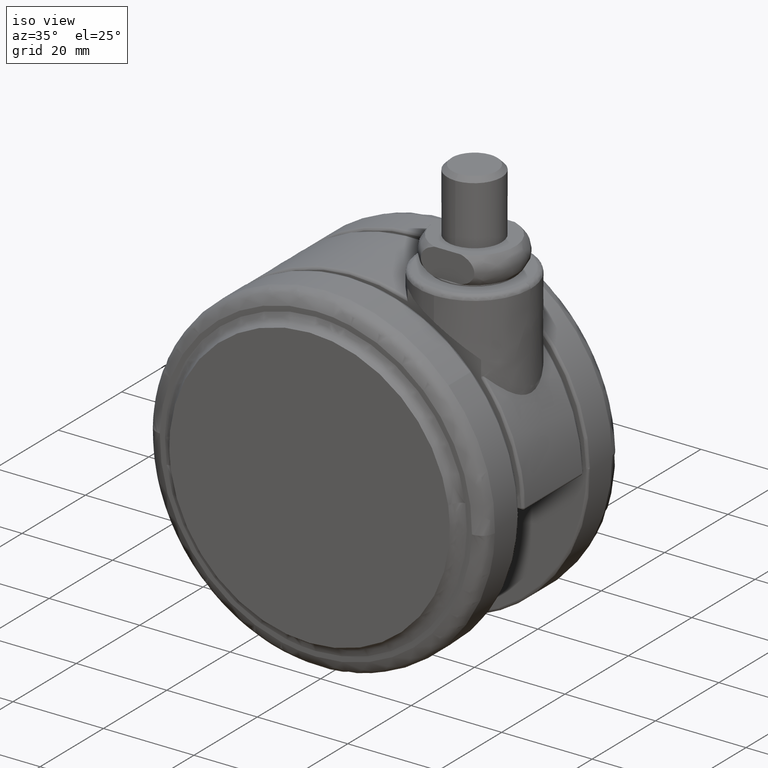
[diagram: clean part render]
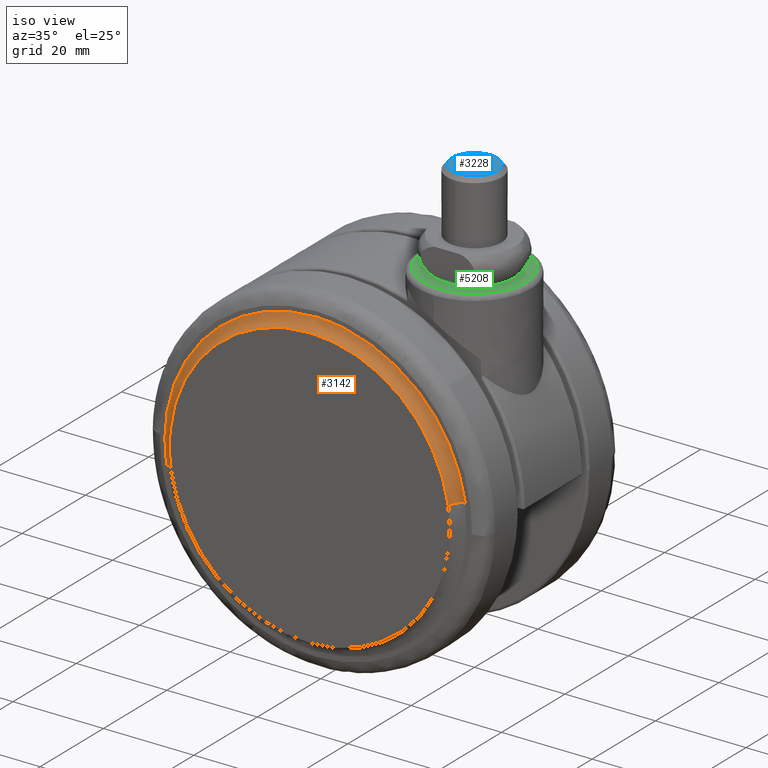
[diagram: same view with three faces highlighted in distinct colors, each labeled with its STEP entity id]
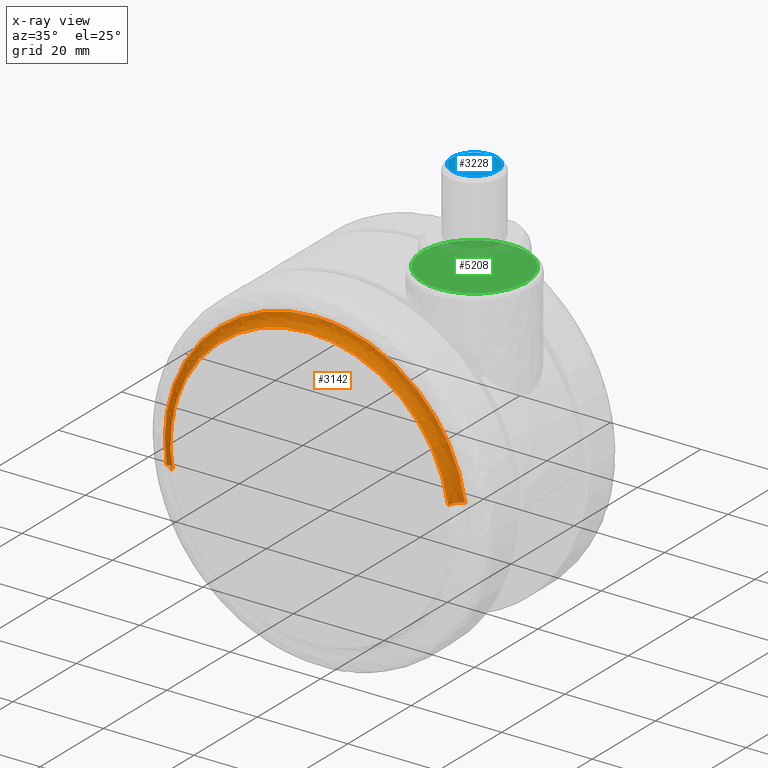
[diagram: x-ray of the same camera — body ghosted, the three highlighted faces saturated]
A machine part, iso view with three faces highlighted in distinct colors.
The next image is the same camera in x-ray (body ghosted, the three faces saturated) — at least one of them is partly hidden behind the body in this view.
Their STEP definitions:

[orange] entity #3142 — the highlighted face is a freeform B-spline surface patch.
#2918=CARTESIAN_POINT('',(13.004433128609440,-21.499999999814150,-35.484977837914862));
#2919=VERTEX_POINT('',#2918);
#2935=CARTESIAN_POINT('',(-53.004433128609449,-21.499999999814161,-45.515022162085153));
#2936=VERTEX_POINT('',#2935);
#2950=CARTESIAN_POINT('',(-20.0,-21.500000000000000,-7.116724942436252));
#2951=VERTEX_POINT('',#2950);
#2952=CARTESIAN_POINT('',(-20.0,-21.500000000000000,-7.116724942436252));
#2953=CARTESIAN_POINT('',(-53.383275056660736,-21.499999999920124,-7.116724942299039));
#2954=CARTESIAN_POINT('',(-53.383275055610142,-21.499999999827210,-40.499999999703149));
#2955=CARTESIAN_POINT('',(-53.383275055530767,-21.499999999820197,-43.021820210633315));
#2956=CARTESIAN_POINT('',(-53.004433128609449,-21.499999999814154,-45.515022162085153));
#2964=(BOUNDED_CURVE()B_SPLINE_CURVE(2,(#2952,#2953,#2954,#2955,#2956),.UNSPECIFIED.,.F.,.U.)B_SPLINE_CURVE_WITH_KNOTS((3,2,3),(0.500000000000000,0.750000000000000,0.775897584623980),.UNSPECIFIED.)CURVE()GEOMETRIC_REPRESENTATION_ITEM()RATIONAL_B_SPLINE_CURVE((1.0,0.707106781186547,1.0,0.969659092319955,0.945604234433608))REPRESENTATION_ITEM(''));
#2965=EDGE_CURVE('',#2951,#2936,#2964,.T.);
#2967=CARTESIAN_POINT('',(13.004433128609438,-21.499999999814154,-35.484977837914855));
#2968=CARTESIAN_POINT('',(8.693878350110213,-21.499999999907082,-7.116724942595894));
#2969=CARTESIAN_POINT('',(-20.0,-21.500000000000000,-7.116724942436252));
#2977=(BOUNDED_CURVE()B_SPLINE_CURVE(2,(#2967,#2968,#2969),.UNSPECIFIED.,.F.,.U.)B_SPLINE_CURVE_WITH_KNOTS((3,3),(0.275897584623980,0.500000000000000),.UNSPECIFIED.)CURVE()GEOMETRIC_REPRESENTATION_ITEM()RATIONAL_B_SPLINE_CURVE((0.945604234433608,0.737447688866593,1.0))REPRESENTATION_ITEM(''));
#2978=EDGE_CURVE('',#2919,#2951,#2977,.T.);
#3014=CARTESIAN_POINT('',(10.648204086947260,-23.499999999140972,-35.843006737229253));
#3015=VERTEX_POINT('',#3014);
#3016=CARTESIAN_POINT('',(10.648204086947256,-23.499999999140968,-35.843006737229246));
#3017=CARTESIAN_POINT('',(10.837666864718962,-21.308362473418075,-35.814217876437766));
#3018=CARTESIAN_POINT('',(13.004433128609442,-21.499999999814154,-35.484977837914855));
#3026=(BOUNDED_CURVE()B_SPLINE_CURVE(2,(#3016,#3017,#3018),.UNSPECIFIED.,.F.,.U.)B_SPLINE_CURVE_WITH_KNOTS((3,3),(-1.724209565164943,-0.264358934360544),.UNSPECIFIED.)CURVE()GEOMETRIC_REPRESENTATION_ITEM()RATIONAL_B_SPLINE_CURVE((0.884168488113474,0.626637108860881,0.888233568479345))REPRESENTATION_ITEM(''));
#3027=EDGE_CURVE('',#3015,#2919,#3026,.T.);
#3046=CARTESIAN_POINT('',(-50.648204086947260,-23.499999999140972,-45.156993262770747));
#3047=VERTEX_POINT('',#3046);
#3061=CARTESIAN_POINT('',(-50.648204086947260,-23.499999999140964,-45.156993262770754));
#3062=CARTESIAN_POINT('',(-50.837666864718983,-21.308362473418072,-45.185782123562241));
#3063=CARTESIAN_POINT('',(-53.004433128609449,-21.499999999814158,-45.515022162085153));
#3071=(BOUNDED_CURVE()B_SPLINE_CURVE(2,(#3061,#3062,#3063),.UNSPECIFIED.,.F.,.U.)B_SPLINE_CURVE_WITH_KNOTS((3,3),(-1.724209565164938,-0.264358934360535),.UNSPECIFIED.)CURVE()GEOMETRIC_REPRESENTATION_ITEM()RATIONAL_B_SPLINE_CURVE((0.884168488113472,0.626637108860880,0.888233568479348))REPRESENTATION_ITEM(''));
#3072=EDGE_CURVE('',#3047,#2936,#3071,.T.);
#3077=CARTESIAN_POINT('',(10.770428663722328,-23.653227525717526,-36.700814555967042));
#3078=CARTESIAN_POINT('',(10.705727361903827,-23.653227525717536,-36.275007905421944));
#3079=CARTESIAN_POINT('',(5.984480656841412,-23.653227525717536,-5.203944582474812));
#3080=CARTESIAN_POINT('',(-24.655787380341888,-23.653227525717540,-9.859731962816699));
#3081=CARTESIAN_POINT('',(-55.296055417525181,-23.653227525717536,-14.515519343158587));
#3082=CARTESIAN_POINT('',(-50.574808712454505,-23.653227525717533,-45.586582666160240));
#3083=CARTESIAN_POINT('',(-50.510107410627910,-23.653227525717529,-46.012389316758586));
#3084=CARTESIAN_POINT('',(10.814279000540434,-21.123925171574399,-36.695400411004158));
#3085=CARTESIAN_POINT('',(10.749485494160590,-21.123925171574392,-36.268986951719093));
#3086=CARTESIAN_POINT('',(6.021510632643776,-21.123925171574392,-5.153644863373610));
#3087=CARTESIAN_POINT('',(-24.662422251991309,-21.123925171574403,-9.816067115364914));
#3088=CARTESIAN_POINT('',(-55.346355136626393,-21.123925171574392,-14.478489367356225));
#3089=CARTESIAN_POINT('',(-50.618380275101273,-21.123925171574406,-45.593831455756309));
#3090=CARTESIAN_POINT('',(-50.553586768713345,-21.123925171574395,-46.020244915094700));
#3091=CARTESIAN_POINT('',(13.295131359007193,-21.518574478330702,-36.389092745547615));
#3092=CARTESIAN_POINT('',(13.225121338455038,-21.518574478330699,-35.928348811221070));
#3093=CARTESIAN_POINT('',(8.116498025427813,-21.518574478330692,-2.307915826443515));
#3094=CARTESIAN_POINT('',(-25.037793074064329,-21.518574478330699,-7.345708900507846));
#3095=CARTESIAN_POINT('',(-58.192084173556488,-21.518574478330692,-12.383501974572185));
#3096=CARTESIAN_POINT('',(-53.083460860520304,-21.518574478330695,-46.003934959408738));
#3097=CARTESIAN_POINT('',(-53.013450839959383,-21.518574478330695,-46.464678893792914));
#3105=(BOUNDED_SURFACE()B_SPLINE_SURFACE(2,2,((#3077,#3084,#3091),(#3078,#3085,#3092),(#3079,#3086,#3093),(#3080,#3087,#3094),(#3081,#3088,#3095),(#3082,#3089,#3096),(#3083,#3090,#3097)),.UNSPECIFIED.,.F.,.F.,.U.)B_SPLINE_SURFACE_WITH_KNOTS((3,1,2,1,3),(3,3),(0.0,1.111247279712246,56.673611266297932,112.235975252883610,113.347222532737310),(0.0,4.010137234199059),.UNSPECIFIED.)GEOMETRIC_REPRESENTATION_ITEM()RATIONAL_B_SPLINE_SURFACE(((0.921866358362129,0.606433994689932,0.926389929177890),(0.916528724532026,0.602922723694500,0.921026103737257),(0.644309399192096,0.423847902924391,0.647471006260266),(0.911191090701923,0.599411452699068,0.915662278296624),(0.644309399192096,0.423847902924391,0.647471006260266),(0.916528724532705,0.602922723694947,0.921026103737940),(0.921866358363488,0.606433994690826,0.926389929179256)))REPRESENTATION_ITEM('')SURFACE());
#3106=ORIENTED_EDGE('',*,*,#2965,.T.);
#3107=ORIENTED_EDGE('',*,*,#3072,.F.);
#3108=CARTESIAN_POINT('',(-20.0,-23.500000000000000,-9.500000000000002));
#3109=VERTEX_POINT('',#3108);
#3110=CARTESIAN_POINT('',(-20.0,-23.500000000000000,-9.500000000000002));
#3111=CARTESIAN_POINT('',(-51.000000000031974,-23.499999999630823,-9.500000000004851));
#3112=CARTESIAN_POINT('',(-51.000000000069129,-23.499999999201300,-40.500000000010488));
#3113=CARTESIAN_POINT('',(-51.000000000071942,-23.499999999168857,-42.841784213904745));
#3114=CARTESIAN_POINT('',(-50.648204086947260,-23.499999999140968,-45.156993262770762));
#3122=(BOUNDED_CURVE()B_SPLINE_CURVE(2,(#3110,#3111,#3112,#3113,#3114),.UNSPECIFIED.,.F.,.U.)B_SPLINE_CURVE_WITH_KNOTS((3,2,3),(0.500000000000000,0.750000000000000,0.775897584623553),.UNSPECIFIED.)CURVE()GEOMETRIC_REPRESENTATION_ITEM()RATIONAL_B_SPLINE_CURVE((1.0,0.707106781186548,1.0,0.969659092320456,0.945604234434402))REPRESENTATION_ITEM(''));
#3123=EDGE_CURVE('',#3109,#3047,#3122,.T.);
#3124=ORIENTED_EDGE('',*,*,#3123,.F.);
#3125=CARTESIAN_POINT('',(10.648204086947262,-23.499999999140975,-35.843006737229246));
#3126=CARTESIAN_POINT('',(6.645385372037931,-23.499999999570491,-9.499999999994349));
#3127=CARTESIAN_POINT('',(-20.0,-23.500000000000000,-9.500000000000002));
#3135=(BOUNDED_CURVE()B_SPLINE_CURVE(2,(#3125,#3126,#3127),.UNSPECIFIED.,.F.,.U.)B_SPLINE_CURVE_WITH_KNOTS((3,3),(0.275897584623553,0.500000000000000),.UNSPECIFIED.)CURVE()GEOMETRIC_REPRESENTATION_ITEM()RATIONAL_B_SPLINE_CURVE((0.945604234434402,0.737447688866092,1.0))REPRESENTATION_ITEM(''));
#3136=EDGE_CURVE('',#3015,#3109,#3135,.T.);
#3137=ORIENTED_EDGE('',*,*,#3136,.F.);
#3138=ORIENTED_EDGE('',*,*,#3027,.T.);
#3139=ORIENTED_EDGE('',*,*,#2978,.T.);
#3140=EDGE_LOOP('',(#3106,#3107,#3124,#3137,#3138,#3139));
#3141=FACE_OUTER_BOUND('',#3140,.T.);
#3142=ADVANCED_FACE('',(#3141),#3105,.F.);

[blue] entity #3228 — the highlighted face is a freeform B-spline surface patch.
#3157=CARTESIAN_POINT('',(-5.499499980618060,-5.499290586215052,20.499999999999648));
#3158=CARTESIAN_POINT('',(5.499500248838961,-5.499290586215052,20.499999999999648));
#3159=CARTESIAN_POINT('',(-5.499499980618060,5.499290228587241,20.499999999999648));
#3160=CARTESIAN_POINT('',(5.499500248838961,5.499290228587241,20.499999999999648));
#3161=B_SPLINE_SURFACE_WITH_KNOTS('',1,1,((#3157,#3159),(#3158,#3160)),.UNSPECIFIED.,.F.,.F.,.U.,(2,2),(2,2),(0.0,10.999000229457019),(0.0,10.998580814802290),.UNSPECIFIED.);
#3162=CARTESIAN_POINT('',(5.0,2.842171E-014,20.499999999999648));
#3163=VERTEX_POINT('',#3162);
#3164=CARTESIAN_POINT('',(0.043632678370580,4.999809615432811,20.499999999880060));
#3165=VERTEX_POINT('',#3164);
#3166=CARTESIAN_POINT('',(5.0,2.842171E-014,20.499999999999648));
#3167=CARTESIAN_POINT('',(5.000000000000523,4.956556052164606,20.499999999939860));
#3168=CARTESIAN_POINT('',(0.043632678370580,4.999809615432811,20.499999999880057));
#3176=(BOUNDED_CURVE()B_SPLINE_CURVE(2,(#3166,#3167,#3168),.UNSPECIFIED.,.F.,.U.)B_SPLINE_CURVE_WITH_KNOTS((3,3),(0.0,0.248460105634093),.UNSPECIFIED.)CURVE()GEOMETRIC_REPRESENTATION_ITEM()RATIONAL_B_SPLINE_CURVE((1.0,0.708910879656401,0.996414028028848))REPRESENTATION_ITEM(''));
#3177=EDGE_CURVE('',#3163,#3165,#3176,.T.);
#3178=ORIENTED_EDGE('',*,*,#3177,.T.);
#3179=CARTESIAN_POINT('',(-5.0,2.842171E-014,20.499999999999648));
#3180=VERTEX_POINT('',#3179);
#3181=CARTESIAN_POINT('',(0.043632678370580,4.999809615432811,20.499999999880057));
#3182=CARTESIAN_POINT('',(0.021816754543408,5.000000000119355,20.499999999880323));
#3183=CARTESIAN_POINT('',(1.038889E-012,5.000000000119095,20.499999999880579));
#3184=CARTESIAN_POINT('',(-4.999999999999482,5.000000000059301,20.499999999940382));
#3185=CARTESIAN_POINT('',(-5.0,2.842171E-014,20.499999999999648));
#3193=(BOUNDED_CURVE()B_SPLINE_CURVE(2,(#3181,#3182,#3183,#3184,#3185),.UNSPECIFIED.,.F.,.U.)B_SPLINE_CURVE_WITH_KNOTS((3,2,3),(0.248460105634093,0.250000000000000,0.500000000000000),.UNSPECIFIED.)CURVE()GEOMETRIC_REPRESENTATION_ITEM()RATIONAL_B_SPLINE_CURVE((0.996414028028848,0.998195901530147,1.0,0.707106781186548,1.0))REPRESENTATION_ITEM(''));
#3194=EDGE_CURVE('',#3165,#3180,#3193,.T.);
#3195=ORIENTED_EDGE('',*,*,#3194,.T.);
#3196=CARTESIAN_POINT('',(-0.043632678370580,-4.999809615432755,20.499999999880060));
#3197=VERTEX_POINT('',#3196);
#3198=CARTESIAN_POINT('',(-5.0,2.842171E-014,20.499999999999648));
#3199=CARTESIAN_POINT('',(-5.000000000000522,-4.956556052164551,20.499999999939863));
#3200=CARTESIAN_POINT('',(-0.043632678370580,-4.999809615432755,20.499999999880064));
#3208=(BOUNDED_CURVE()B_SPLINE_CURVE(2,(#3198,#3199,#3200),.UNSPECIFIED.,.F.,.U.)B_SPLINE_CURVE_WITH_KNOTS((3,3),(0.500000000000000,0.748460105634093),.UNSPECIFIED.)CURVE()GEOMETRIC_REPRESENTATION_ITEM()RATIONAL_B_SPLINE_CURVE((1.0,0.708910879656401,0.996414028028848))REPRESENTATION_ITEM(''));
#3209=EDGE_CURVE('',#3180,#3197,#3208,.T.);
#3210=ORIENTED_EDGE('',*,*,#3209,.T.);
#3211=CARTESIAN_POINT('',(-0.043632678370580,-4.999809615432755,20.499999999880064));
#3212=CARTESIAN_POINT('',(-0.021816754543408,-5.000000000119299,20.499999999880320));
#3213=CARTESIAN_POINT('',(-1.040022E-012,-5.000000000119038,20.499999999880579));
#3214=CARTESIAN_POINT('',(4.999999999999482,-5.000000000059246,20.499999999940371));
#3215=CARTESIAN_POINT('',(5.0,2.842171E-014,20.499999999999648));
#3223=(BOUNDED_CURVE()B_SPLINE_CURVE(2,(#3211,#3212,#3213,#3214,#3215),.UNSPECIFIED.,.F.,.U.)B_SPLINE_CURVE_WITH_KNOTS((3,2,3),(0.748460105634093,0.750000000000000,1.0),.UNSPECIFIED.)CURVE()GEOMETRIC_REPRESENTATION_ITEM()RATIONAL_B_SPLINE_CURVE((0.996414028028848,0.998195901530147,1.0,0.707106781186548,1.0))REPRESENTATION_ITEM(''));
#3224=EDGE_CURVE('',#3197,#3163,#3223,.T.);
#3225=ORIENTED_EDGE('',*,*,#3224,.T.);
#3226=EDGE_LOOP('',(#3178,#3195,#3210,#3225));
#3227=FACE_OUTER_BOUND('',#3226,.T.);
#3228=ADVANCED_FACE('',(#3227),#3161,.T.);

[green] entity #5208 — the highlighted face is a freeform B-spline surface patch.
#5051=CARTESIAN_POINT('',(-12.648849955421539,-12.647851772015640,0.0));
#5052=CARTESIAN_POINT('',(12.648850572329611,-12.647851772015640,0.0));
#5053=CARTESIAN_POINT('',(-12.648849955421539,12.647852388875091,0.0));
#5054=CARTESIAN_POINT('',(12.648850572329611,12.647852388875091,0.0));
#5055=B_SPLINE_SURFACE_WITH_KNOTS('',1,1,((#5051,#5053),(#5052,#5054)),.UNSPECIFIED.,.F.,.F.,.U.,(2,2),(2,2),(0.0,25.297700527751150),(0.0,25.295704160890729),.UNSPECIFIED.);
#5056=CARTESIAN_POINT('',(11.500000000000000,2.842171E-014,0.0));
#5057=VERTEX_POINT('',#5056);
#5058=CARTESIAN_POINT('',(-11.496368189848241,0.288996098564049,-3.592407E-016));
#5059=VERTEX_POINT('',#5058);
#5060=CARTESIAN_POINT('',(11.500000000000000,2.842171E-014,0.0));
#5061=CARTESIAN_POINT('',(11.500036272914750,0.653297496664674,-1.276669E-019));
#5062=CARTESIAN_POINT('',(11.380438020389770,2.053264974787295,-2.270486E-018));
#5063=CARTESIAN_POINT('',(10.772563707891241,4.268882892666383,-1.219987E-017));
#5064=CARTESIAN_POINT('',(9.729581882983551,6.268169816208349,-2.888280E-017));
#5065=CARTESIAN_POINT('',(8.558338999180670,7.729160245321418,-4.746341E-017));
#5066=CARTESIAN_POINT('',(7.381370248797001,8.864410332525736,-6.606951E-017));
#5067=CARTESIAN_POINT('',(5.984665874931204,9.890183038574769,-8.808621E-017));
#5068=CARTESIAN_POINT('',(4.260435678140578,10.737783723248420,-1.151836E-016));
#5069=CARTESIAN_POINT('',(2.647531092112039,11.223532228036751,-1.404712E-016));
#5070=CARTESIAN_POINT('',(1.126154504885239,11.476429309706580,-1.642834E-016));
#5071=CARTESIAN_POINT('',(-0.650663475655831,11.542185956358070,-1.920488E-016));
#5072=CARTESIAN_POINT('',(-2.601925656814843,11.267964050772949,-2.224720E-016));
#5073=CARTESIAN_POINT('',(-4.644495266149190,10.586051527399100,-2.542414E-016));
#5074=CARTESIAN_POINT('',(-6.250355219682325,9.711423043457641,-2.791519E-016));
#5075=CARTESIAN_POINT('',(-7.731160412089645,8.569251903496440,-3.020566E-016));
#5076=CARTESIAN_POINT('',(-8.804562715756653,7.457226895776039,-3.186040E-016));
#5077=CARTESIAN_POINT('',(-9.820154676145355,6.057633094839996,-3.341920E-016));
#5078=CARTESIAN_POINT('',(-10.588360536701700,4.609550482728333,-3.459065E-016));
#5079=CARTESIAN_POINT('',(-11.269582528752300,2.617219923115606,-3.561555E-016));
#5080=CARTESIAN_POINT('',(-11.474301816339670,1.175389187605293,-3.590701E-016));
#5081=CARTESIAN_POINT('',(-11.496368189848241,0.288996098564049,-3.592407E-016));
#5082=B_SPLINE_CURVE_WITH_KNOTS('',3,(#5060,#5061,#5062,#5063,#5064,#5065,#5066,#5067,#5068,#5069,#5070,#5071,#5072,#5073,#5074,#5075,#5076,#5077,#5078,#5079,#5080,#5081),.UNSPECIFIED.,.F.,.U.,(4,1,1,1,1,1,1,1,1,1,1,1,1,1,1,1,1,1,1,4),(0.000000163507451,1.959908445066169,4.199933378294617,6.859895558533033,8.679880551531443,9.799870037981172,11.759867065565031,13.859840067627831,15.539817425782530,16.799822004025369,18.479695469119228,20.859695783268140,22.679684135541901,24.919637205130769,26.319637704828590,28.279619759283491,29.539621116527560,31.499593269761260,33.179562926085367,35.839510294836003),.UNSPECIFIED.);
#5083=EDGE_CURVE('',#5057,#5059,#5082,.T.);
#5084=ORIENTED_EDGE('',*,*,#5083,.T.);
#5085=CARTESIAN_POINT('',(-11.500000000000000,2.842171E-014,0.0));
#5086=VERTEX_POINT('',#5085);
#5087=CARTESIAN_POINT('',(-11.496368189848235,0.288996098564049,-3.592407E-016));
#5088=CARTESIAN_POINT('',(-11.500000006553137,0.144520869901864,-1.796204E-016));
#5089=CARTESIAN_POINT('',(-11.500000000000000,2.842171E-014,0.0));
#5097=(BOUNDED_CURVE()B_SPLINE_CURVE(2,(#5087,#5088,#5089),.UNSPECIFIED.,.F.,.U.)B_SPLINE_CURVE_WITH_KNOTS((3,3),(0.495579891760125,0.500000000000000),.UNSPECIFIED.)CURVE()GEOMETRIC_REPRESENTATION_ITEM()RATIONAL_B_SPLINE_CURVE((0.989826157659690,0.994821521080476,1.0))REPRESENTATION_ITEM(''));
#5098=EDGE_CURVE('',#5059,#5086,#5097,.T.);
#5099=ORIENTED_EDGE('',*,*,#5098,.T.);
#5100=CARTESIAN_POINT('',(11.496368189848241,-0.288996098563988,-3.592407E-016));
#5101=VERTEX_POINT('',#5100);
#5102=CARTESIAN_POINT('',(-11.500000000000000,2.842171E-014,0.0));
#5103=CARTESIAN_POINT('',(-11.500014276658719,-0.513304875560962,-1.005318E-019));
#5104=CARTESIAN_POINT('',(-11.424921464799050,-1.633267267683937,-1.493252E-018));
#5105=CARTESIAN_POINT('',(-11.088412165515869,-3.188884221436597,-7.054592E-018));
#5106=CARTESIAN_POINT('',(-10.506477441754649,-4.768182214923113,-1.645392E-017));
#5107=CARTESIAN_POINT('',(-9.686743777459197,-6.293984057192005,-2.955697E-017));
#5108=CARTESIAN_POINT('',(-8.656443217321757,-7.628658515283053,-4.591138E-017));
#5109=CARTESIAN_POINT('',(-7.485992559941781,-8.771370908486674,-6.441713E-017));
#5110=CARTESIAN_POINT('',(-6.140574595631311,-9.784926754476942,-8.563038E-017));
#5111=CARTESIAN_POINT('',(-4.686737593406467,-10.544095553026301,-1.084871E-016));
#5112=CARTESIAN_POINT('',(-3.013692098189890,-11.138284104679411,-1.347353E-016));
#5113=CARTESIAN_POINT('',(-1.406715684803852,-11.466116229874350,-1.598993E-016));
#5114=CARTESIAN_POINT('',(0.744192570138363,-11.545685649405060,-1.935103E-016));
#5115=CARTESIAN_POINT('',(2.880301871715087,-11.218937286249760,-2.268104E-016));
#5116=CARTESIAN_POINT('',(5.074205851054130,-10.396268802096040,-2.609159E-016));
#5117=CARTESIAN_POINT('',(6.875808159522422,-9.298047423291076,-2.888398E-016));
#5118=CARTESIAN_POINT('',(8.585979501475114,-7.767604252505025,-3.152508E-016));
#5119=CARTESIAN_POINT('',(9.904417811686987,-5.996491718683217,-3.354961E-016));
#5120=CARTESIAN_POINT('',(10.859927989949851,-3.961496816721919,-3.500209E-016));
#5121=CARTESIAN_POINT('',(11.358497604589511,-2.106047539758469,-3.574440E-016));
#5122=CARTESIAN_POINT('',(11.482311892259020,-0.848792173361972,-3.591311E-016));
#5123=CARTESIAN_POINT('',(11.496368189848241,-0.288996098563988,-3.592407E-016));
#5124=B_SPLINE_CURVE_WITH_KNOTS('',3,(#5102,#5103,#5104,#5105,#5106,#5107,#5108,#5109,#5110,#5111,#5112,#5113,#5114,#5115,#5116,#5117,#5118,#5119,#5120,#5121,#5122,#5123),.UNSPECIFIED.,.F.,.U.,(4,1,1,1,1,1,1,1,1,1,1,1,1,1,1,1,1,1,1,4),(0.000000163517115,1.539922088072459,3.359905197266436,4.759918320283898,6.579892346753336,8.539880882378771,9.799870037986679,11.479871229578270,13.579838351523239,14.699837174992290,16.799822004028300,18.479695469121580,21.139688299695930,23.239670841419539,25.479640010112281,27.439629573288869,30.099621173473771,32.059577446230577,34.159580146949672,35.839510294836032),.UNSPECIFIED.);
#5125=EDGE_CURVE('',#5086,#5101,#5124,.T.);
#5126=ORIENTED_EDGE('',*,*,#5125,.T.);
#5127=CARTESIAN_POINT('',(11.496368189848233,-0.288996098563988,-3.592407E-016));
#5128=CARTESIAN_POINT('',(11.500000006553137,-0.144520869901805,-1.796204E-016));
#5129=CARTESIAN_POINT('',(11.500000000000000,2.842171E-014,0.0));
#5137=(BOUNDED_CURVE()B_SPLINE_CURVE(2,(#5127,#5128,#5129),.UNSPECIFIED.,.F.,.U.)B_SPLINE_CURVE_WITH_KNOTS((3,3),(0.995579891760125,1.0),.UNSPECIFIED.)CURVE()GEOMETRIC_REPRESENTATION_ITEM()RATIONAL_B_SPLINE_CURVE((0.989826157659691,0.994821521080476,1.0))REPRESENTATION_ITEM(''));
#5138=EDGE_CURVE('',#5101,#5057,#5137,.T.);
#5139=ORIENTED_EDGE('',*,*,#5138,.T.);
#5140=EDGE_LOOP('',(#5084,#5099,#5126,#5139));
#5141=FACE_OUTER_BOUND('',#5140,.T.);
#5142=CARTESIAN_POINT('',(3.0,2.842171E-014,0.0));
#5143=VERTEX_POINT('',#5142);
#5144=CARTESIAN_POINT('',(0.183145618736188,2.994404395257579,6.106227E-016));
#5145=VERTEX_POINT('',#5144);
#5146=CARTESIAN_POINT('',(3.0,2.842171E-014,0.0));
#5147=CARTESIAN_POINT('',(3.000000000000000,2.822118200592836,0.0));
#5148=CARTESIAN_POINT('',(0.183145618736189,2.994404395257579,0.0));
#5156=(BOUNDED_CURVE()B_SPLINE_CURVE(2,(#5146,#5147,#5148),.UNSPECIFIED.,.F.,.U.)B_SPLINE_CURVE_WITH_KNOTS((3,3),(0.500000000000000,0.739332962234384),.UNSPECIFIED.)CURVE()GEOMETRIC_REPRESENTATION_ITEM()RATIONAL_B_SPLINE_CURVE((1.0,0.719603993292051,0.976072041656947))REPRESENTATION_ITEM(''));
#5157=EDGE_CURVE('',#5143,#5145,#5156,.T.);
#5158=ORIENTED_EDGE('',*,*,#5157,.F.);
#5159=CARTESIAN_POINT('',(-0.183145618736188,-2.994404395257522,6.106227E-016));
#5160=VERTEX_POINT('',#5159);
#5161=CARTESIAN_POINT('',(-0.183145618736189,-2.994404395257522,0.0));
#5162=CARTESIAN_POINT('',(-0.091658289961760,-2.999999999999971,0.0));
#5163=CARTESIAN_POINT('',(0.0,-2.999999999999972,0.0));
#5164=CARTESIAN_POINT('',(3.0,-2.999999999999971,0.0));
#5165=CARTESIAN_POINT('',(3.0,2.842171E-014,0.0));
#5173=(BOUNDED_CURVE()B_SPLINE_CURVE(2,(#5161,#5162,#5163,#5164,#5165),.UNSPECIFIED.,.F.,.U.)B_SPLINE_CURVE_WITH_KNOTS((3,2,3),(0.239332962234384,0.250000000000000,0.500000000000000),.UNSPECIFIED.)CURVE()GEOMETRIC_REPRESENTATION_ITEM()RATIONAL_B_SPLINE_CURVE((0.976072041656947,0.987502787894496,1.0,0.707106781186548,1.0))REPRESENTATION_ITEM(''));
#5174=EDGE_CURVE('',#5160,#5143,#5173,.T.);
#5175=ORIENTED_EDGE('',*,*,#5174,.F.);
#5176=CARTESIAN_POINT('',(-3.0,2.842171E-014,0.0));
#5177=VERTEX_POINT('',#5176);
#5178=CARTESIAN_POINT('',(-3.0,2.842171E-014,0.0));
#5179=CARTESIAN_POINT('',(-3.000000000000001,-2.822118200592780,0.0));
#5180=CARTESIAN_POINT('',(-0.183145618736189,-2.994404395257522,0.0));
#5188=(BOUNDED_CURVE()B_SPLINE_CURVE(2,(#5178,#5179,#5180),.UNSPECIFIED.,.F.,.U.)B_SPLINE_CURVE_WITH_KNOTS((3,3),(0.0,0.239332962234384),.UNSPECIFIED.)CURVE()GEOMETRIC_REPRESENTATION_ITEM()RATIONAL_B_SPLINE_CURVE((1.0,0.719603993292051,0.976072041656947))REPRESENTATION_ITEM(''));
#5189=EDGE_CURVE('',#5177,#5160,#5188,.T.);
#5190=ORIENTED_EDGE('',*,*,#5189,.F.);
#5191=CARTESIAN_POINT('',(0.183145618736189,2.994404395257579,0.0));
#5192=CARTESIAN_POINT('',(0.091658289961760,3.000000000000029,0.0));
#5193=CARTESIAN_POINT('',(0.0,3.000000000000029,0.0));
#5194=CARTESIAN_POINT('',(-3.0,3.000000000000028,0.0));
#5195=CARTESIAN_POINT('',(-3.0,2.842171E-014,0.0));
#5203=(BOUNDED_CURVE()B_SPLINE_CURVE(2,(#5191,#5192,#5193,#5194,#5195),.UNSPECIFIED.,.F.,.U.)B_SPLINE_CURVE_WITH_KNOTS((3,2,3),(0.739332962234384,0.750000000000000,1.0),.UNSPECIFIED.)CURVE()GEOMETRIC_REPRESENTATION_ITEM()RATIONAL_B_SPLINE_CURVE((0.976072041656947,0.987502787894496,1.0,0.707106781186548,1.0))REPRESENTATION_ITEM(''));
#5204=EDGE_CURVE('',#5145,#5177,#5203,.T.);
#5205=ORIENTED_EDGE('',*,*,#5204,.F.);
#5206=EDGE_LOOP('',(#5158,#5175,#5190,#5205));
#5207=FACE_BOUND('',#5206,.T.);
#5208=ADVANCED_FACE('',(#5141,#5207),#5055,.T.);